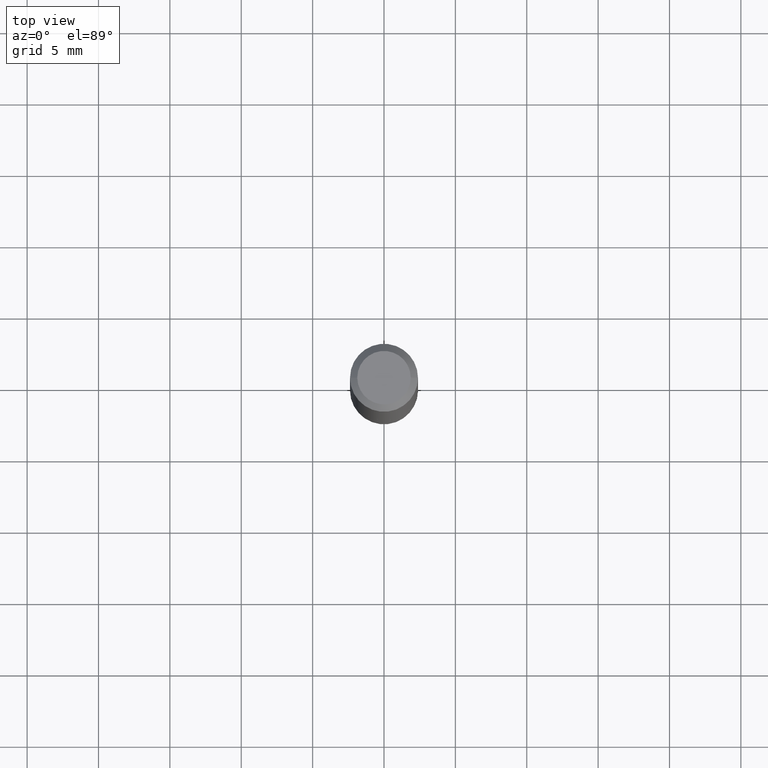
[diagram: clean part render]
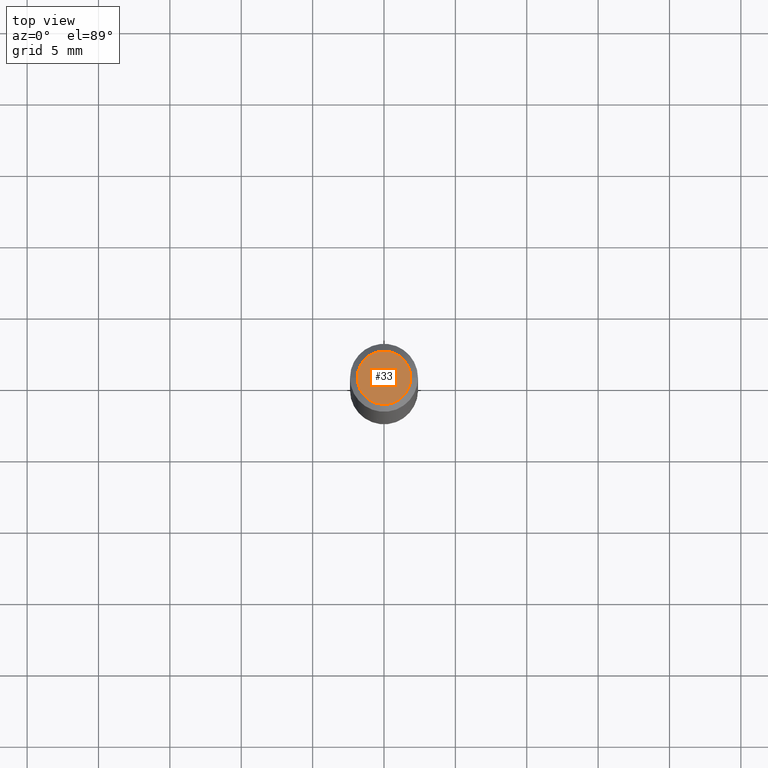
[diagram: same view with one face highlighted and labeled with its STEP entity id]
A machine part, top view. The second image highlights one B-rep face of the part: STEP entity #33.
In plain terms, the highlighted planar face has unit normal (0, -0, -1).
Its self-contained STEP definition (entity closure, byte-faithful):
#4 = DIRECTION ( 'NONE',  ( -2.445468806185136597E-29, 3.491481338843145583E-15, 1.000000000000000000 ) ) ;
#6 = CARTESIAN_POINT ( 'NONE',  ( 0.000000000000000000, 0.000000000000000000, 0.000000000000000000 ) ) ;
#19 = AXIS2_PLACEMENT_3D ( 'NONE', #60, #146, #85 ) ;
#33 = ADVANCED_FACE ( 'NONE', ( #297 ), #205, .F. ) ;
#60 = CARTESIAN_POINT ( 'NONE',  ( 5.149934974793613022E-16, 0.07374999999999988509, -2.574967487396815385E-16 ) ) ;
#65 = CIRCLE ( 'NONE', #325, 0.07374999999999988509 ) ;
#69 = DIRECTION ( 'NONE',  ( 1.000000000000000000, -6.982962677686265922E-15, 4.876176775795935232E-29 ) ) ;
#85 = DIRECTION ( 'NONE',  ( -1.000000000000000000, 6.982962677686265922E-15, -4.876176775795935793E-29 ) ) ;
#127 = VERTEX_POINT ( 'NONE', #246 ) ;
#141 = EDGE_LOOP ( 'NONE', ( #288, #283 ) ) ;
#146 = DIRECTION ( 'NONE',  ( 2.438088387897960049E-29, -3.491481338843145188E-15, -1.000000000000000000 ) ) ;
#197 = VERTEX_POINT ( 'NONE', #365 ) ;
#204 = AXIS2_PLACEMENT_3D ( 'NONE', #6, #4, #364 ) ;
#205 = PLANE ( 'NONE',  #19 ) ;
#207 = DIRECTION ( 'NONE',  ( -2.445468806185136597E-29, 3.491481338843145583E-15, 1.000000000000000000 ) ) ;
#246 = CARTESIAN_POINT ( 'NONE',  ( 0.07374999999999988509, -6.094815207017963170E-16, 3.931526600461599449E-30 ) ) ;
#276 = CIRCLE ( 'NONE', #204, 0.07374999999999988509 ) ;
#283 = ORIENTED_EDGE ( 'NONE', *, *, #326, .T. ) ;
#288 = ORIENTED_EDGE ( 'NONE', *, *, #362, .T. ) ;
#297 = FACE_OUTER_BOUND ( 'NONE', #141, .T. ) ;
#325 = AXIS2_PLACEMENT_3D ( 'NONE', #372, #207, #69 ) ;
#326 = EDGE_CURVE ( 'NONE', #127, #197, #276, .T. ) ;
#362 = EDGE_CURVE ( 'NONE', #197, #127, #65, .T. ) ;
#364 = DIRECTION ( 'NONE',  ( 1.000000000000000000, -6.982962677686265922E-15, 4.876176775795935232E-29 ) ) ;
#365 = CARTESIAN_POINT ( 'NONE',  ( -0.07374999999999988509, 5.499083108677923596E-16, -3.723527850031187664E-30 ) ) ;
#372 = CARTESIAN_POINT ( 'NONE',  ( 0.000000000000000000, 0.000000000000000000, 0.000000000000000000 ) ) ;